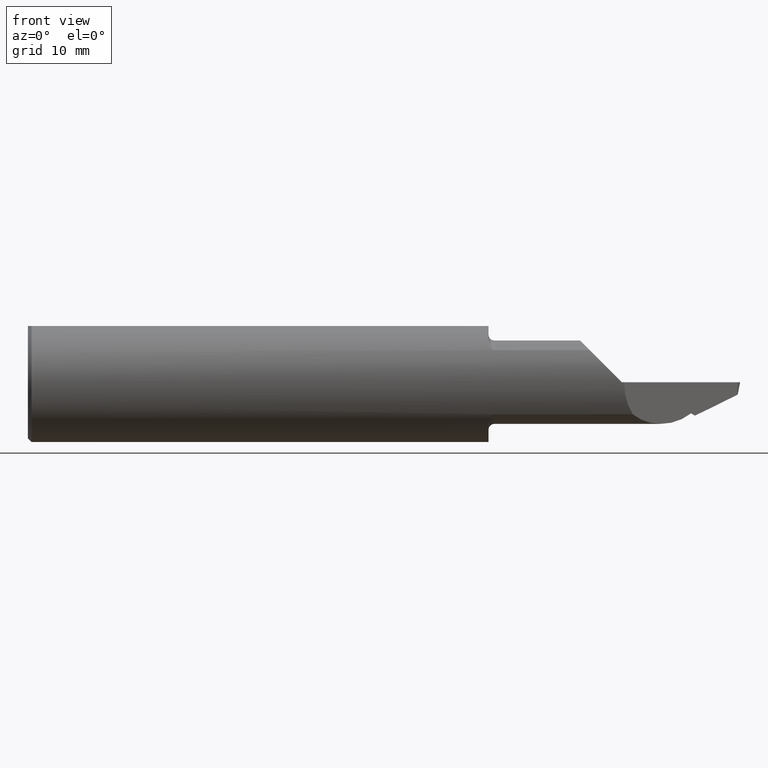
[diagram: clean part render]
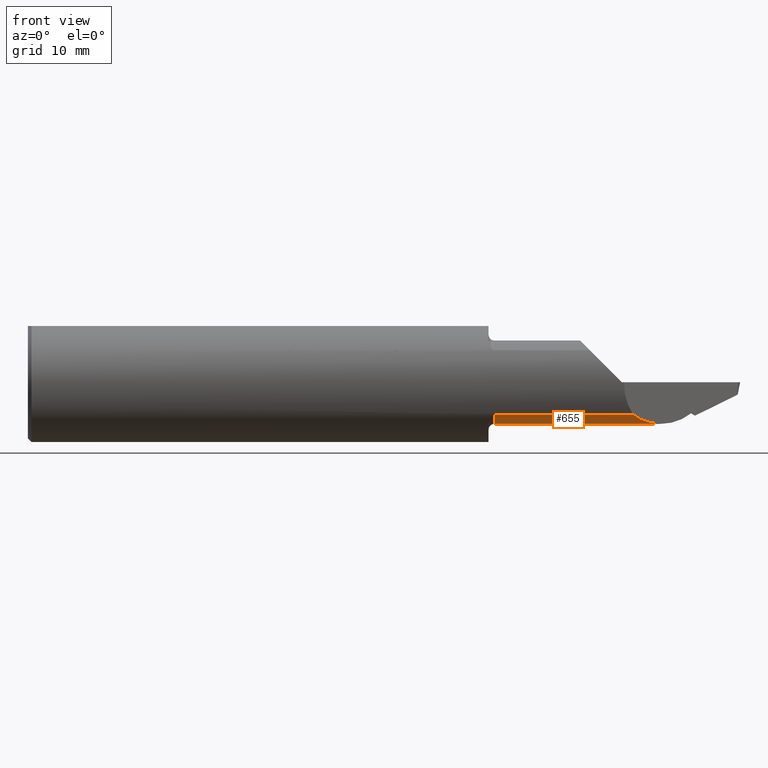
[diagram: same view with one face highlighted and labeled with its STEP entity id]
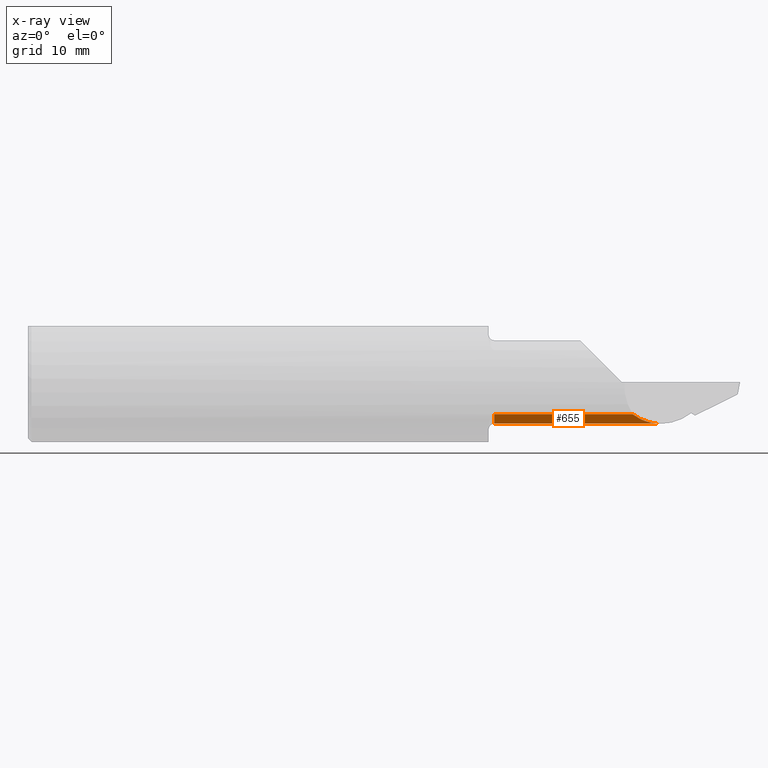
[diagram: x-ray of the same camera — body ghosted, the highlighted face saturated]
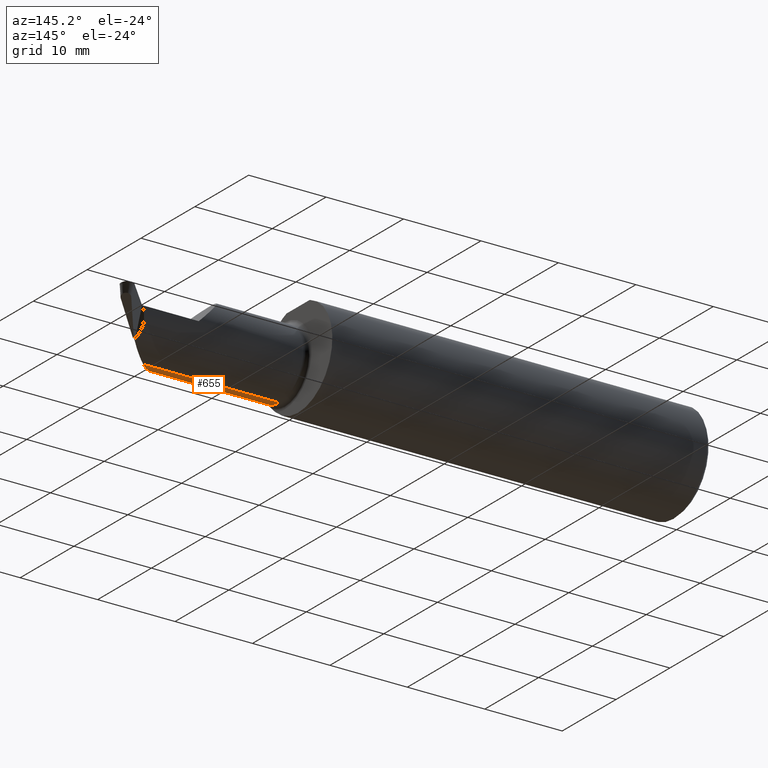
[diagram: same view with one face highlighted and labeled with its STEP entity id]
A machine part, front view. The second image highlights one B-rep face of the part: STEP entity #655.
The next image is the same camera in x-ray: the body ghosted, the highlighted face saturated — about 0% of this face is hidden behind the body in this view.
A second angle (auxiliary view) of the same face is appended — the face is thin or edge-on in the first view.
In plain terms, the highlighted cylindrical surface (partial cylindrical patch) has radius 4.4196 mm, axis along (-1, -0, -0).
Its self-contained STEP definition (entity closure, byte-faithful):
#35 = ORIENTED_EDGE ( 'NONE', *, *, #667, .F. ) ;
#37 = DIRECTION ( 'NONE',  ( -1.000000000000000000, -0.000000000000000000, -0.000000000000000000 ) ) ;
#57 = EDGE_LOOP ( 'NONE', ( #243, #35, #351, #313 ) ) ;
#70 = VERTEX_POINT ( 'NONE', #312 ) ;
#122 = CARTESIAN_POINT ( 'NONE',  ( 1.948000000000000176, -0.09984999999999999432, -0.1740000000000001545 ) ) ;
#124 = VERTEX_POINT ( 'NONE', #122 ) ;
#133 = AXIS2_PLACEMENT_3D ( 'NONE', #787, #525, #323 ) ;
#156 = CARTESIAN_POINT ( 'NONE',  ( 2.525106817358469868, -0.2109115923885827859, -0.1339452227446440713 ) ) ;
#173 = CARTESIAN_POINT ( 'NONE',  ( 1.923000000000000265, -0.09984999999999999432, -0.1740000000000000435 ) ) ;
#209 = DIRECTION ( 'NONE',  ( -1.000000000000000000, -0.000000000000000000, -0.000000000000000000 ) ) ;
#213 = CIRCLE ( 'NONE', #133, 0.1740000000000001545 ) ;
#218 = CARTESIAN_POINT ( 'NONE',  ( 2.642154845230877402, -0.09984999999999999432, -0.1740000000000000435 ) ) ;
#225 = EDGE_CURVE ( 'NONE', #124, #70, #213, .T. ) ;
#231 = DIRECTION ( 'NONE',  ( -1.000000000000000000, -0.000000000000000000, -0.000000000000000000 ) ) ;
#243 = ORIENTED_EDGE ( 'NONE', *, *, #810, .F. ) ;
#275 =( BOUNDED_CURVE ( )  B_SPLINE_CURVE ( 3, ( #542, #410, #677, #218 ),
 .UNSPECIFIED., .F., .T. ) 
 B_SPLINE_CURVE_WITH_KNOTS ( ( 4, 4 ),
 ( 0.8308160677390153959, 1.523084436873744174 ),
 .UNSPECIFIED. ) 
 CURVE ( )  GEOMETRIC_REPRESENTATION_ITEM ( )  RATIONAL_B_SPLINE_CURVE ( ( 1.000000000000000000, 0.9604608466326346461, 0.9604608466326346461, 1.000000000000000000 ) ) 
 REPRESENTATION_ITEM ( '' )  );
#305 = VERTEX_POINT ( 'NONE', #156 ) ;
#312 = CARTESIAN_POINT ( 'NONE',  ( 1.948000000000000176, -0.2109115923885828414, -0.1339452227446441546 ) ) ;
#313 = ORIENTED_EDGE ( 'NONE', *, *, #225, .F. ) ;
#318 = VERTEX_POINT ( 'NONE', #603 ) ;
#323 = DIRECTION ( 'NONE',  ( 0.000000000000000000, 0.000000000000000000, 1.000000000000000000 ) ) ;
#336 = CARTESIAN_POINT ( 'NONE',  ( 1.923000000000000265, -0.09985000000000000819, 0.000000000000000000 ) ) ;
#340 = AXIS2_PLACEMENT_3D ( 'NONE', #336, #209, #598 ) ;
#351 = ORIENTED_EDGE ( 'NONE', *, *, #442, .T. ) ;
#369 = VECTOR ( 'NONE', #37, 39.37007874015748143 ) ;
#410 = CARTESIAN_POINT ( 'NONE',  ( 2.557592675252737369, -0.1793692571805422242, -0.1600987644990813641 ) ) ;
#442 = EDGE_CURVE ( 'NONE', #305, #70, #610, .T. ) ;
#468 = VECTOR ( 'NONE', #231, 39.37007874015748143 ) ;
#525 = DIRECTION ( 'NONE',  ( -1.000000000000000000, -0.000000000000000000, -0.000000000000000000 ) ) ;
#542 = CARTESIAN_POINT ( 'NONE',  ( 2.525106817358469868, -0.2109115923885827859, -0.1339452227446440713 ) ) ;
#598 = DIRECTION ( 'NONE',  ( 0.000000000000000000, 0.000000000000000000, 1.000000000000000000 ) ) ;
#603 = CARTESIAN_POINT ( 'NONE',  ( 2.642154845230877402, -0.09984999999999999432, -0.1740000000000000435 ) ) ;
#610 = LINE ( 'NONE', #614, #369 ) ;
#614 = CARTESIAN_POINT ( 'NONE',  ( 2.358209556428159548, -0.2109115923885827859, -0.1339452227446440713 ) ) ;
#655 = ADVANCED_FACE ( 'NONE', ( #778 ), #661, .T. ) ;
#661 = CYLINDRICAL_SURFACE ( 'NONE', #340, 0.1740000000000000435 ) ;
#667 = EDGE_CURVE ( 'NONE', #305, #318, #275, .T. ) ;
#677 = CARTESIAN_POINT ( 'NONE',  ( 2.598214850979724933, -0.1408247075240018908, -0.1740000000000000713 ) ) ;
#778 = FACE_OUTER_BOUND ( 'NONE', #57, .T. ) ;
#787 = CARTESIAN_POINT ( 'NONE',  ( 1.948000000000000176, -0.09985000000000000819, 0.000000000000000000 ) ) ;
#798 = LINE ( 'NONE', #173, #468 ) ;
#810 = EDGE_CURVE ( 'NONE', #318, #124, #798, .T. ) ;